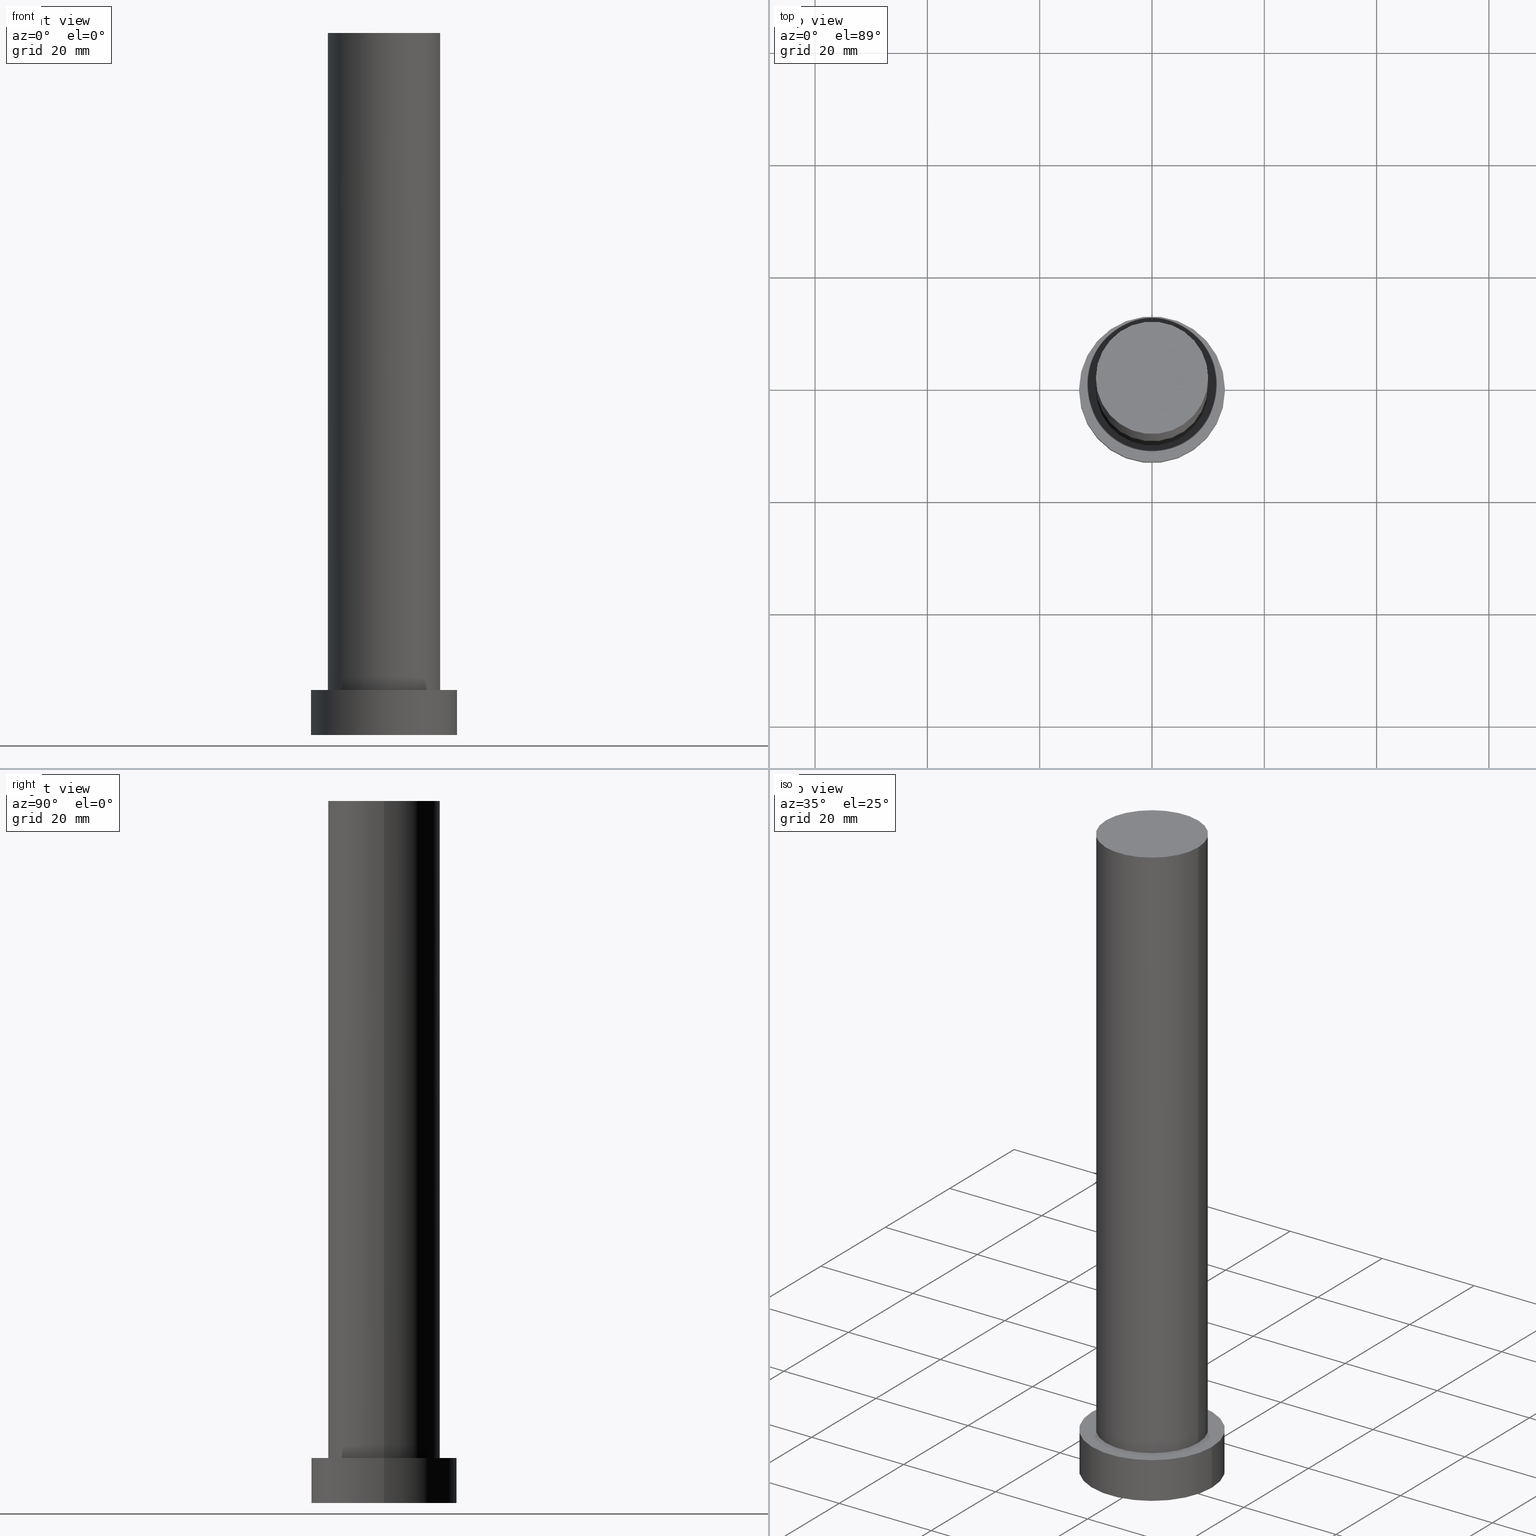
[diagram: canonical four-view strip — front | top / right | iso, engineering-drawing reading convention]
A machine part, canonical four-view strip (front | top / right | iso — engineering-drawing reading convention). The complete STEP part file that produces these views, byte-faithful:
ISO-10303-21;
HEADER;
FILE_DESCRIPTION (( 'STEP AP203' ),
    '1' );
FILE_NAME ('9fb4.STEP',
    '2023-02-13T08:44:42',
    ( '' ),
    ( '' ),
    'SwSTEP 2.0',
    'SolidWorks 2019',
    '' );
FILE_SCHEMA (( 'CONFIG_CONTROL_DESIGN' ));
ENDSEC;

DATA;
#1 = CARTESIAN_POINT ( 'NONE',  ( 0.000000000000000000, 0.000000000000000000, 125.0000000000000000 ) ) ;
#2 = VERTEX_POINT ( 'NONE', #186 ) ;
#3 = DIRECTION ( 'NONE',  ( 1.000000000000000000, 0.000000000000000000, 0.000000000000000000 ) ) ;
#4 = ADVANCED_FACE ( 'NONE', ( #153 ), #53, .T. ) ;
#5 = PERSON_AND_ORGANIZATION ( #179, #47 ) ;
#6 = DIRECTION ( 'NONE',  ( 0.000000000000000000, 0.000000000000000000, 1.000000000000000000 ) ) ;
#7 = CC_DESIGN_PERSON_AND_ORGANIZATION_ASSIGNMENT ( #206, #126, ( #70 ) ) ;
#8 = AXIS2_PLACEMENT_3D ( 'NONE', #85, #57, #40 ) ;
#9 = CC_DESIGN_APPROVAL ( #243, ( #27 ) ) ;
#10 = DIRECTION ( 'NONE',  ( -0.000000000000000000, -0.000000000000000000, -1.000000000000000000 ) ) ;
#11 = PRODUCT_RELATED_PRODUCT_CATEGORY ( 'detail', '', ( #55 ) ) ;
#12 = DATE_TIME_ROLE ( 'classification_date' ) ;
#13 = EDGE_LOOP ( 'NONE', ( #91, #131 ) ) ;
#14 = CARTESIAN_POINT ( 'NONE',  ( 0.000000000000000000, 0.000000000000000000, 125.0000000000000000 ) ) ;
#15 = AXIS2_PLACEMENT_3D ( 'NONE', #93, #115, #56 ) ;
#16 = ORIENTED_EDGE ( 'NONE', *, *, #46, .T. ) ;
#17 = CALENDAR_DATE ( 2023, 13, 2 ) ;
#18 = CYLINDRICAL_SURFACE ( 'NONE', #129, 13.00000000000000178 ) ;
#19 = VERTEX_POINT ( 'NONE', #71 ) ;
#20 = CC_DESIGN_APPROVAL ( #121, ( #70 ) ) ;
#21 = LINE ( 'NONE', #100, #226 ) ;
#22 = DIRECTION ( 'NONE',  ( 1.000000000000000000, 0.000000000000000000, 0.000000000000000000 ) ) ;
#23 = ADVANCED_FACE ( 'NONE', ( #237 ), #134, .T. ) ;
#24 = DIRECTION ( 'NONE',  ( 1.000000000000000000, 0.000000000000000000, -0.000000000000000000 ) ) ;
#25 = PERSON_AND_ORGANIZATION ( #179, #47 ) ;
#26 = DIRECTION ( 'NONE',  ( -0.000000000000000000, -0.000000000000000000, -1.000000000000000000 ) ) ;
#27 = SECURITY_CLASSIFICATION ( '', '', #29 ) ;
#28 = PERSON_AND_ORGANIZATION ( #179, #47 ) ;
#29 = SECURITY_CLASSIFICATION_LEVEL ( 'unclassified' ) ;
#30 = ADVANCED_FACE ( 'NONE', ( #67 ), #44, .T. ) ;
#31 = COORDINATED_UNIVERSAL_TIME_OFFSET ( 1, 0, .AHEAD. ) ;
#32 = APPLICATION_CONTEXT ( 'configuration controlled 3d designs of mechanical parts and assemblies' ) ;
#33 = EDGE_LOOP ( 'NONE', ( #113, #16 ) ) ;
#34 = COORDINATED_UNIVERSAL_TIME_OFFSET ( 1, 0, .AHEAD. ) ;
#35 = ORIENTED_EDGE ( 'NONE', *, *, #79, .F. ) ;
#36 = DIRECTION ( 'NONE',  ( 0.000000000000000000, 0.000000000000000000, 1.000000000000000000 ) ) ;
#37 = EDGE_LOOP ( 'NONE', ( #99, #172 ) ) ;
#38 = LOCAL_TIME ( 9, 44, 42.00000000000000000, #34 ) ;
#39 = PLANE ( 'NONE',  #202 ) ;
#40 = DIRECTION ( 'NONE',  ( 1.000000000000000000, 0.000000000000000000, 0.000000000000000000 ) ) ;
#41 = DIRECTION ( 'NONE',  ( 0.000000000000000000, 0.000000000000000000, 1.000000000000000000 ) ) ;
#42 = AXIS2_PLACEMENT_3D ( 'NONE', #1, #58, #152 ) ;
#43 = CALENDAR_DATE ( 2023, 13, 2 ) ;
#44 = CYLINDRICAL_SURFACE ( 'NONE', #15, 13.00000000000000178 ) ;
#45 = CALENDAR_DATE ( 2023, 13, 2 ) ;
#46 = EDGE_CURVE ( 'NONE', #191, #120, #156, .T. ) ;
#47 = ORGANIZATION ( 'NEUR�EN�', 'NEUR�EN�', '' ) ;
#48 = DATE_AND_TIME ( #43, #59 ) ;
#49 = CARTESIAN_POINT ( 'NONE',  ( -13.00000000000000178, 0.000000000000000000, 8.000000000000000000 ) ) ;
#50 = VERTEX_POINT ( 'NONE', #73 ) ;
#51 = CLOSED_SHELL ( 'NONE', ( #4, #92, #30, #117, #173, #127, #23 ) ) ;
#52 = ORIENTED_EDGE ( 'NONE', *, *, #154, .T. ) ;
#53 = CYLINDRICAL_SURFACE ( 'NONE', #204, 10.00000000000000178 ) ;
#54 = VECTOR ( 'NONE', #26, 1000.000000000000000 ) ;
#55 = PRODUCT ( '9fb4', '9fb4', '', ( #216 ) ) ;
#56 = DIRECTION ( 'NONE',  ( -1.000000000000000000, 0.000000000000000000, 0.000000000000000000 ) ) ;
#57 = DIRECTION ( 'NONE',  ( 0.000000000000000000, 0.000000000000000000, 1.000000000000000000 ) ) ;
#58 = DIRECTION ( 'NONE',  ( 0.000000000000000000, 0.000000000000000000, 1.000000000000000000 ) ) ;
#59 = LOCAL_TIME ( 9, 44, 42.00000000000000000, #31 ) ;
#60 = DIRECTION ( 'NONE',  ( 1.000000000000000000, 0.000000000000000000, 0.000000000000000000 ) ) ;
#61 = CARTESIAN_POINT ( 'NONE',  ( 0.000000000000000000, 0.000000000000000000, 0.000000000000000000 ) ) ;
#62 = DATE_AND_TIME ( #241, #101 ) ;
#63 = CIRCLE ( 'NONE', #227, 13.00000000000000178 ) ;
#64 = DIRECTION ( 'NONE',  ( -0.000000000000000000, -0.000000000000000000, -1.000000000000000000 ) ) ;
#65 = PERSON_AND_ORGANIZATION_ROLE ( 'design_owner' ) ;
#66 = APPROVAL_STATUS ( 'not_yet_approved' ) ;
#67 = FACE_OUTER_BOUND ( 'NONE', #72, .T. ) ;
#68 = PERSON_AND_ORGANIZATION ( #179, #47 ) ;
#69 = CARTESIAN_POINT ( 'NONE',  ( 0.000000000000000000, 0.000000000000000000, 8.000000000000000000 ) ) ;
#70 = PRODUCT_DEFINITION_FORMATION_WITH_SPECIFIED_SOURCE ( 'LIBOVOLN�', '', #55, .NOT_KNOWN. ) ;
#71 = CARTESIAN_POINT ( 'NONE',  ( 10.00000000000000178, 1.224646799147353454E-15, 125.0000000000000000 ) ) ;
#72 = EDGE_LOOP ( 'NONE', ( #35, #137, #132, #147 ) ) ;
#73 = CARTESIAN_POINT ( 'NONE',  ( 10.00000000000000178, 1.224646799147353454E-15, 8.000000000000000000 ) ) ;
#74 = PRODUCT_DEFINITION ( 'NEZN�M�', '', #70, #225 ) ;
#75 = EDGE_LOOP ( 'NONE', ( #170, #114, #208, #52 ) ) ;
#76 = CARTESIAN_POINT ( 'NONE',  ( 0.000000000000000000, 0.000000000000000000, 125.0000000000000000 ) ) ;
#77 = ORIENTED_EDGE ( 'NONE', *, *, #239, .T. ) ;
#78 = ORIENTED_EDGE ( 'NONE', *, *, #210, .F. ) ;
#79 = EDGE_CURVE ( 'NONE', #191, #235, #95, .T. ) ;
#80 = CARTESIAN_POINT ( 'NONE',  ( 0.000000000000000000, 0.000000000000000000, 8.000000000000000000 ) ) ;
#81 = APPROVAL_STATUS ( 'not_yet_approved' ) ;
#82 = DATE_AND_TIME ( #17, #38 ) ;
#83 =( LENGTH_UNIT ( ) NAMED_UNIT ( * ) SI_UNIT ( .MILLI., .METRE. ) );
#84 = AXIS2_PLACEMENT_3D ( 'NONE', #124, #36, #177 ) ;
#85 = CARTESIAN_POINT ( 'NONE',  ( 0.000000000000000000, 0.000000000000000000, 0.000000000000000000 ) ) ;
#86 = PRODUCT_DEFINITION_SHAPE ( 'NONE', 'NONE',  #74 ) ;
#87 = CC_DESIGN_DATE_AND_TIME_ASSIGNMENT ( #82, #97, ( #74 ) ) ;
#88 = DATE_AND_TIME ( #45, #159 ) ;
#89 = PERSON_AND_ORGANIZATION_ROLE ( 'classification_officer' ) ;
#90 = CIRCLE ( 'NONE', #84, 13.00000000000000178 ) ;
#91 = ORIENTED_EDGE ( 'NONE', *, *, #130, .T. ) ;
#92 = ADVANCED_FACE ( 'NONE', ( #230 ), #18, .T. ) ;
#93 = CARTESIAN_POINT ( 'NONE',  ( 0.000000000000000000, 0.000000000000000000, 8.000000000000000000 ) ) ;
#94 = AXIS2_PLACEMENT_3D ( 'NONE', #146, #189, #167 ) ;
#95 = LINE ( 'NONE', #169, #224 ) ;
#96 = ORIENTED_EDGE ( 'NONE', *, *, #192, .F. ) ;
#97 = DATE_TIME_ROLE ( 'creation_date' ) ;
#98 = DIRECTION ( 'NONE',  ( -1.000000000000000000, 0.000000000000000000, 0.000000000000000000 ) ) ;
#99 = ORIENTED_EDGE ( 'NONE', *, *, #154, .F. ) ;
#100 = CARTESIAN_POINT ( 'NONE',  ( -13.00000000000000178, 0.000000000000000000, 8.000000000000000000 ) ) ;
#101 = LOCAL_TIME ( 9, 44, 42.00000000000000000, #158 ) ;
#102 = CARTESIAN_POINT ( 'NONE',  ( 13.00000000000000178, 1.592040838891559293E-15, 8.000000000000000000 ) ) ;
#103 = PERSON_AND_ORGANIZATION ( #179, #47 ) ;
#104 = APPROVAL_STATUS ( 'not_yet_approved' ) ;
#105 = CARTESIAN_POINT ( 'NONE',  ( 0.000000000000000000, 0.000000000000000000, 0.000000000000000000 ) ) ;
#106 = CARTESIAN_POINT ( 'NONE',  ( 10.00000000000000178, 1.224646799147353454E-15, 125.0000000000000000 ) ) ;
#107 = EDGE_CURVE ( 'NONE', #19, #2, #123, .T. ) ;
#108 = SHAPE_DEFINITION_REPRESENTATION ( #86, #148 ) ;
#109 = AXIS2_PLACEMENT_3D ( 'NONE', #69, #145, #228 ) ;
#110 = AXIS2_PLACEMENT_3D ( 'NONE', #80, #155, #60 ) ;
#111 = PERSON_AND_ORGANIZATION_ROLE ( 'design_supplier' ) ;
#112 = CARTESIAN_POINT ( 'NONE',  ( 0.000000000000000000, 0.000000000000000000, 8.000000000000000000 ) ) ;
#113 = ORIENTED_EDGE ( 'NONE', *, *, #231, .T. ) ;
#114 = ORIENTED_EDGE ( 'NONE', *, *, #130, .F. ) ;
#115 = DIRECTION ( 'NONE',  ( -0.000000000000000000, -0.000000000000000000, -1.000000000000000000 ) ) ;
#116 = ORIENTED_EDGE ( 'NONE', *, *, #46, .F. ) ;
#117 = ADVANCED_FACE ( 'NONE', ( #236, #212 ), #182, .T. ) ;
#118 = ORIENTED_EDGE ( 'NONE', *, *, #247, .T. ) ;
#119 = DIRECTION ( 'NONE',  ( 0.000000000000000000, 0.000000000000000000, 1.000000000000000000 ) ) ;
#120 = VERTEX_POINT ( 'NONE', #49 ) ;
#121 = APPROVAL ( #81, 'NEUR�EN�' ) ;
#122 = CARTESIAN_POINT ( 'NONE',  ( 0.000000000000000000, 0.000000000000000000, 0.000000000000000000 ) ) ;
#123 = CIRCLE ( 'NONE', #42, 10.00000000000000178 ) ;
#124 = CARTESIAN_POINT ( 'NONE',  ( 0.000000000000000000, 0.000000000000000000, 8.000000000000000000 ) ) ;
#125 = LINE ( 'NONE', #106, #138 ) ;
#126 = PERSON_AND_ORGANIZATION_ROLE ( 'creator' ) ;
#127 = ADVANCED_FACE ( 'NONE', ( #188 ), #254, .T. ) ;
#128 =( GEOMETRIC_REPRESENTATION_CONTEXT ( 3 ) GLOBAL_UNCERTAINTY_ASSIGNED_CONTEXT ( ( #180 ) ) GLOBAL_UNIT_ASSIGNED_CONTEXT ( ( #83, #221, #255 ) ) REPRESENTATION_CONTEXT ( 'NONE', 'WORKASPACE' ) );
#129 = AXIS2_PLACEMENT_3D ( 'NONE', #207, #133, #98 ) ;
#130 = EDGE_CURVE ( 'NONE', #2, #19, #165, .T. ) ;
#131 = ORIENTED_EDGE ( 'NONE', *, *, #107, .T. ) ;
#132 = ORIENTED_EDGE ( 'NONE', *, *, #139, .T. ) ;
#133 = DIRECTION ( 'NONE',  ( -0.000000000000000000, -0.000000000000000000, -1.000000000000000000 ) ) ;
#134 = PLANE ( 'NONE',  #94 ) ;
#135 = DIRECTION ( 'NONE',  ( -1.000000000000000000, 0.000000000000000000, 0.000000000000000000 ) ) ;
#136 = APPROVAL_DATE_TIME ( #151, #181 ) ;
#137 = ORIENTED_EDGE ( 'NONE', *, *, #231, .F. ) ;
#138 = VECTOR ( 'NONE', #64, 1000.000000000000000 ) ;
#139 = EDGE_CURVE ( 'NONE', #120, #150, #21, .T. ) ;
#140 = FACE_OUTER_BOUND ( 'NONE', #209, .T. ) ;
#141 = DIRECTION ( 'NONE',  ( 1.000000000000000000, 0.000000000000000000, 0.000000000000000000 ) ) ;
#142 = APPROVAL_DATE_TIME ( #62, #121 ) ;
#143 = APPROVAL_PERSON_ORGANIZATION ( #103, #181, #196 ) ;
#144 = CC_DESIGN_PERSON_AND_ORGANIZATION_ASSIGNMENT ( #25, #65, ( #55 ) ) ;
#145 = DIRECTION ( 'NONE',  ( 0.000000000000000000, 0.000000000000000000, 1.000000000000000000 ) ) ;
#146 = CARTESIAN_POINT ( 'NONE',  ( 0.000000000000000000, 0.000000000000000000, 125.0000000000000000 ) ) ;
#147 = ORIENTED_EDGE ( 'NONE', *, *, #210, .T. ) ;
#148 = ADVANCED_BREP_SHAPE_REPRESENTATION ( '9fb4', ( #203, #8 ), #128 ) ;
#149 = CC_DESIGN_SECURITY_CLASSIFICATION ( #27, ( #70 ) ) ;
#150 = VERTEX_POINT ( 'NONE', #238 ) ;
#151 = DATE_AND_TIME ( #176, #211 ) ;
#152 = DIRECTION ( 'NONE',  ( 1.000000000000000000, 0.000000000000000000, 0.000000000000000000 ) ) ;
#153 = FACE_OUTER_BOUND ( 'NONE', #253, .T. ) ;
#154 = EDGE_CURVE ( 'NONE', #232, #50, #248, .T. ) ;
#155 = DIRECTION ( 'NONE',  ( 0.000000000000000000, 0.000000000000000000, 1.000000000000000000 ) ) ;
#156 = CIRCLE ( 'NONE', #194, 13.00000000000000178 ) ;
#157 = APPROVAL_ROLE ( '' ) ;
#158 = COORDINATED_UNIVERSAL_TIME_OFFSET ( 1, 0, .AHEAD. ) ;
#159 = LOCAL_TIME ( 9, 44, 42.00000000000000000, #205 ) ;
#160 = CC_DESIGN_PERSON_AND_ORGANIZATION_ASSIGNMENT ( #5, #174, ( #74 ) ) ;
#161 = EDGE_CURVE ( 'NONE', #50, #232, #246, .T. ) ;
#162 = PERSON_AND_ORGANIZATION ( #179, #47 ) ;
#163 = APPROVAL_PERSON_ORGANIZATION ( #162, #243, #245 ) ;
#164 = ORIENTED_EDGE ( 'NONE', *, *, #247, .F. ) ;
#165 = CIRCLE ( 'NONE', #187, 10.00000000000000178 ) ;
#166 = DIRECTION ( 'NONE',  ( 0.000000000000000000, 0.000000000000000000, 1.000000000000000000 ) ) ;
#167 = DIRECTION ( 'NONE',  ( 1.000000000000000000, 0.000000000000000000, -0.000000000000000000 ) ) ;
#168 = PERSON_AND_ORGANIZATION ( #179, #47 ) ;
#169 = CARTESIAN_POINT ( 'NONE',  ( 13.00000000000000178, 1.592040838891559293E-15, 8.000000000000000000 ) ) ;
#170 = ORIENTED_EDGE ( 'NONE', *, *, #239, .F. ) ;
#171 = DIRECTION ( 'NONE',  ( -0.000000000000000000, -0.000000000000000000, -1.000000000000000000 ) ) ;
#172 = ORIENTED_EDGE ( 'NONE', *, *, #161, .F. ) ;
#173 = ADVANCED_FACE ( 'NONE', ( #140 ), #39, .F. ) ;
#174 = PERSON_AND_ORGANIZATION_ROLE ( 'creator' ) ;
#175 = LINE ( 'NONE', #222, #54 ) ;
#176 = CALENDAR_DATE ( 2023, 13, 2 ) ;
#177 = DIRECTION ( 'NONE',  ( 1.000000000000000000, 0.000000000000000000, 0.000000000000000000 ) ) ;
#178 = AXIS2_PLACEMENT_3D ( 'NONE', #219, #195, #3 ) ;
#179 = PERSON ( 'NEUR�EN�', 'NEUR�EN�', 'NEUR�EN�', ('NEUR�EN�'), ('NEUR�EN�'), ('NEUR�EN�') ) ;
#180 = UNCERTAINTY_MEASURE_WITH_UNIT (LENGTH_MEASURE( 1.000000000000000082E-05 ), #83, 'distance_accuracy_value', 'NONE');
#181 = APPROVAL ( #104, 'NEUR�EN�' ) ;
#182 = PLANE ( 'NONE',  #109 ) ;
#183 = APPROVAL_DATE_TIME ( #48, #243 ) ;
#184 = ORIENTED_EDGE ( 'NONE', *, *, #139, .F. ) ;
#185 = APPROVAL_PERSON_ORGANIZATION ( #168, #121, #157 ) ;
#186 = CARTESIAN_POINT ( 'NONE',  ( -10.00000000000000178, 0.000000000000000000, 125.0000000000000000 ) ) ;
#187 = AXIS2_PLACEMENT_3D ( 'NONE', #193, #119, #22 ) ;
#188 = FACE_OUTER_BOUND ( 'NONE', #75, .T. ) ;
#189 = DIRECTION ( 'NONE',  ( 0.000000000000000000, 0.000000000000000000, 1.000000000000000000 ) ) ;
#190 = DIRECTION ( 'NONE',  ( -1.000000000000000000, 0.000000000000000000, 0.000000000000000000 ) ) ;
#191 = VERTEX_POINT ( 'NONE', #102 ) ;
#192 = EDGE_CURVE ( 'NONE', #2, #232, #175, .T. ) ;
#193 = CARTESIAN_POINT ( 'NONE',  ( 0.000000000000000000, 0.000000000000000000, 125.0000000000000000 ) ) ;
#194 = AXIS2_PLACEMENT_3D ( 'NONE', #112, #166, #252 ) ;
#195 = DIRECTION ( 'NONE',  ( 0.000000000000000000, 0.000000000000000000, 1.000000000000000000 ) ) ;
#196 = APPROVAL_ROLE ( '' ) ;
#197 = DIRECTION ( 'NONE',  ( 0.000000000000000000, 0.000000000000000000, 1.000000000000000000 ) ) ;
#198 = CC_DESIGN_APPROVAL ( #181, ( #74 ) ) ;
#199 = APPLICATION_PROTOCOL_DEFINITION ( 'international standard', 'config_control_design', 1994, #32 ) ;
#200 = CC_DESIGN_PERSON_AND_ORGANIZATION_ASSIGNMENT ( #68, #111, ( #70 ) ) ;
#201 = DIRECTION ( 'NONE',  ( 1.000000000000000000, 0.000000000000000000, 0.000000000000000000 ) ) ;
#202 = AXIS2_PLACEMENT_3D ( 'NONE', #122, #197, #24 ) ;
#203 = MANIFOLD_SOLID_BREP ( 'P�idat vysunut�m3', #51 ) ;
#204 = AXIS2_PLACEMENT_3D ( 'NONE', #14, #233, #190 ) ;
#205 = COORDINATED_UNIVERSAL_TIME_OFFSET ( 1, 0, .AHEAD. ) ;
#206 = PERSON_AND_ORGANIZATION ( #179, #47 ) ;
#207 = CARTESIAN_POINT ( 'NONE',  ( 0.000000000000000000, 0.000000000000000000, 8.000000000000000000 ) ) ;
#208 = ORIENTED_EDGE ( 'NONE', *, *, #192, .T. ) ;
#209 = EDGE_LOOP ( 'NONE', ( #78, #164 ) ) ;
#210 = EDGE_CURVE ( 'NONE', #150, #235, #249, .T. ) ;
#211 = LOCAL_TIME ( 9, 44, 42.00000000000000000, #214 ) ;
#212 = FACE_OUTER_BOUND ( 'NONE', #33, .T. ) ;
#213 = ORIENTED_EDGE ( 'NONE', *, *, #107, .F. ) ;
#214 = COORDINATED_UNIVERSAL_TIME_OFFSET ( 1, 0, .AHEAD. ) ;
#215 = ORIENTED_EDGE ( 'NONE', *, *, #79, .T. ) ;
#216 = MECHANICAL_CONTEXT ( 'NONE', #32, 'mechanical' ) ;
#217 = CC_DESIGN_PERSON_AND_ORGANIZATION_ASSIGNMENT ( #28, #89, ( #27 ) ) ;
#218 = EDGE_LOOP ( 'NONE', ( #116, #215, #118, #184 ) ) ;
#219 = CARTESIAN_POINT ( 'NONE',  ( 0.000000000000000000, 0.000000000000000000, 8.000000000000000000 ) ) ;
#220 = AXIS2_PLACEMENT_3D ( 'NONE', #105, #41, #201 ) ;
#221 =( NAMED_UNIT ( * ) PLANE_ANGLE_UNIT ( ) SI_UNIT ( $, .RADIAN. ) );
#222 = CARTESIAN_POINT ( 'NONE',  ( -10.00000000000000178, 0.000000000000000000, 125.0000000000000000 ) ) ;
#223 = APPLICATION_CONTEXT ( 'configuration controlled 3d designs of mechanical parts and assemblies' ) ;
#224 = VECTOR ( 'NONE', #10, 1000.000000000000000 ) ;
#225 = DESIGN_CONTEXT ( 'detailed design', #223, 'design' ) ;
#226 = VECTOR ( 'NONE', #171, 1000.000000000000000 ) ;
#227 = AXIS2_PLACEMENT_3D ( 'NONE', #61, #6, #141 ) ;
#228 = DIRECTION ( 'NONE',  ( 1.000000000000000000, 0.000000000000000000, -0.000000000000000000 ) ) ;
#229 = AXIS2_PLACEMENT_3D ( 'NONE', #76, #234, #135 ) ;
#230 = FACE_OUTER_BOUND ( 'NONE', #218, .T. ) ;
#231 = EDGE_CURVE ( 'NONE', #120, #191, #90, .T. ) ;
#232 = VERTEX_POINT ( 'NONE', #244 ) ;
#233 = DIRECTION ( 'NONE',  ( -0.000000000000000000, -0.000000000000000000, -1.000000000000000000 ) ) ;
#234 = DIRECTION ( 'NONE',  ( -0.000000000000000000, -0.000000000000000000, -1.000000000000000000 ) ) ;
#235 = VERTEX_POINT ( 'NONE', #242 ) ;
#236 = FACE_BOUND ( 'NONE', #37, .T. ) ;
#237 = FACE_OUTER_BOUND ( 'NONE', #13, .T. ) ;
#238 = CARTESIAN_POINT ( 'NONE',  ( -13.00000000000000178, 0.000000000000000000, 0.000000000000000000 ) ) ;
#239 = EDGE_CURVE ( 'NONE', #19, #50, #125, .T. ) ;
#240 = APPLICATION_PROTOCOL_DEFINITION ( 'international standard', 'config_control_design', 1994, #223 ) ;
#241 = CALENDAR_DATE ( 2023, 13, 2 ) ;
#242 = CARTESIAN_POINT ( 'NONE',  ( 13.00000000000000178, 1.592040838891559293E-15, 0.000000000000000000 ) ) ;
#243 = APPROVAL ( #66, 'NEUR�EN�' ) ;
#244 = CARTESIAN_POINT ( 'NONE',  ( -10.00000000000000178, 0.000000000000000000, 8.000000000000000000 ) ) ;
#245 = APPROVAL_ROLE ( '' ) ;
#246 = CIRCLE ( 'NONE', #110, 10.00000000000000178 ) ;
#247 = EDGE_CURVE ( 'NONE', #235, #150, #63, .T. ) ;
#248 = CIRCLE ( 'NONE', #178, 10.00000000000000178 ) ;
#249 = CIRCLE ( 'NONE', #220, 13.00000000000000178 ) ;
#250 = CC_DESIGN_DATE_AND_TIME_ASSIGNMENT ( #88, #12, ( #27 ) ) ;
#251 = ORIENTED_EDGE ( 'NONE', *, *, #161, .T. ) ;
#252 = DIRECTION ( 'NONE',  ( 1.000000000000000000, 0.000000000000000000, 0.000000000000000000 ) ) ;
#253 = EDGE_LOOP ( 'NONE', ( #213, #77, #251, #96 ) ) ;
#254 = CYLINDRICAL_SURFACE ( 'NONE', #229, 10.00000000000000178 ) ;
#255 =( NAMED_UNIT ( * ) SI_UNIT ( $, .STERADIAN. ) SOLID_ANGLE_UNIT ( ) );
ENDSEC;
END-ISO-10303-21;
